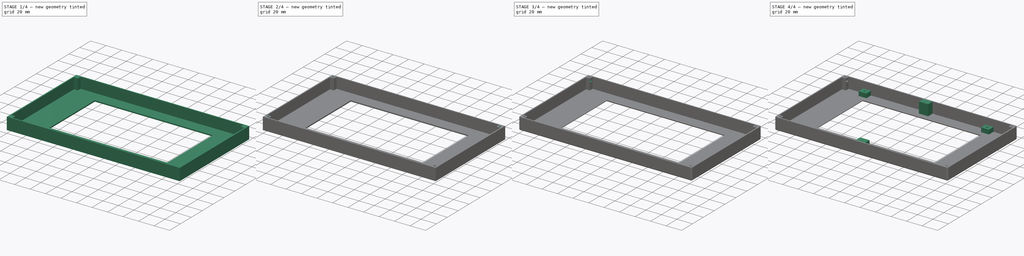
[diagram: build sequence overview — one tinted view per stage of 4, left to right]
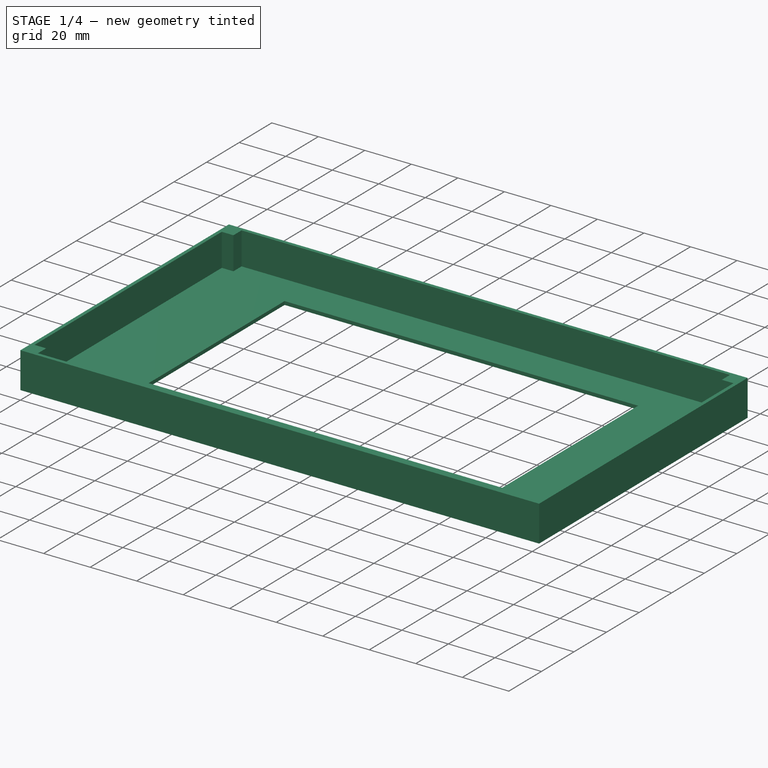
[diagram: stage 1 of 4 — iso view after this stage's code; geometry added in this stage tinted green]
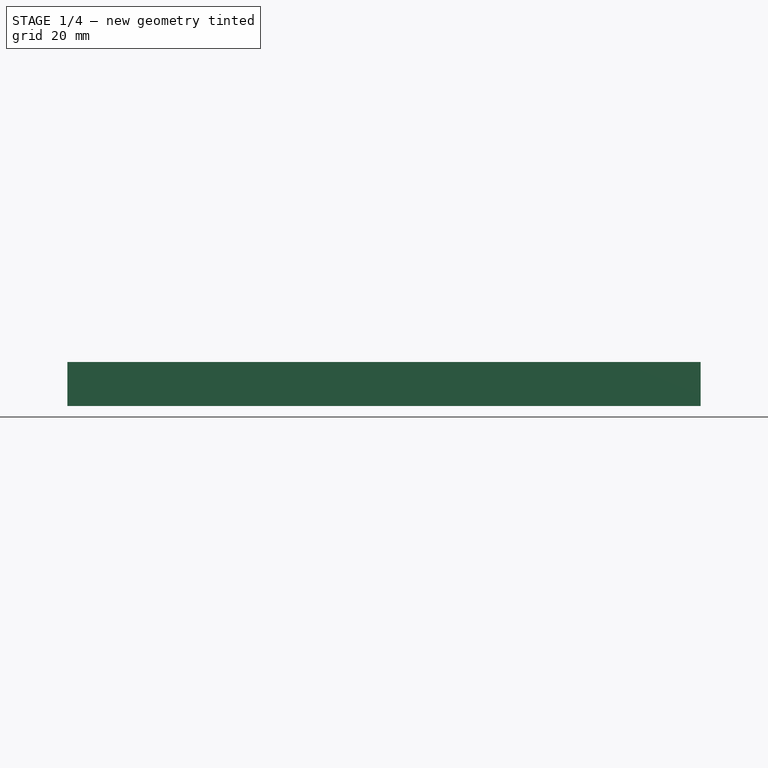
[diagram: stage 1 of 4 — front view after this stage's code; geometry added in this stage tinted green]
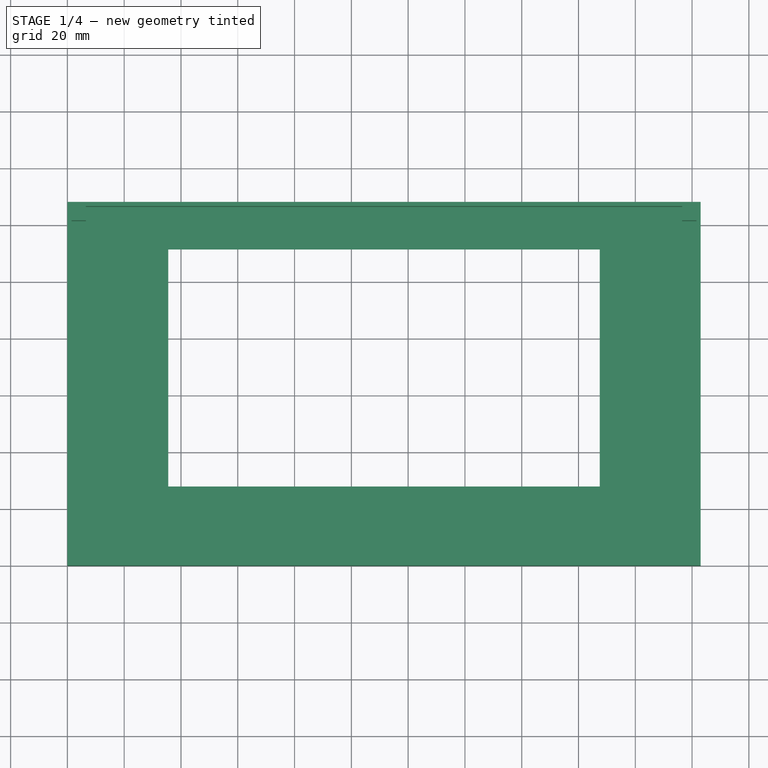
[diagram: stage 1 of 4 — top view after this stage's code; geometry added in this stage tinted green]
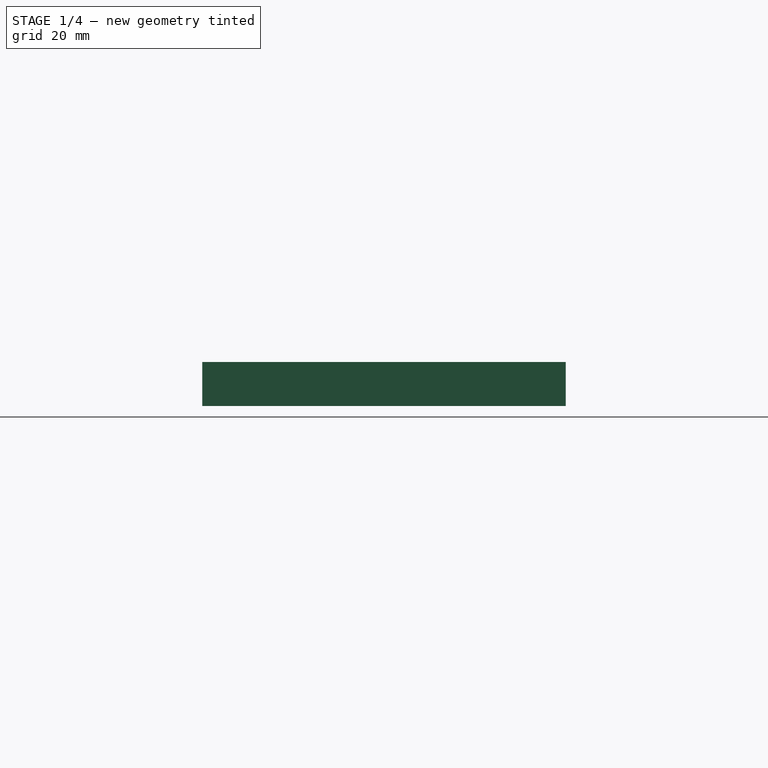
[diagram: stage 1 of 4 — right view after this stage's code; geometry added in this stage tinted green]
FCSTD DOCUMENT  (FreeCAD 0.17R10476 (Git))
Label: EPIC_top
License: All rights reserved
LicenseURL: http://en.wikipedia.org/wiki/All_rights_reserved
objects: Sketcher::SketchObject×10, PartDesign::LinearPattern×6, PartDesign::Pocket×5, PartDesign::Pad×4, PartDesign::MultiTransform×3, PartDesign::Fillet×1, PartDesign::Chamfer×1, PartDesign::Body×1
note: 40 computed .brp shape members not serialized (recipe doc carries the construction recipe); baked Part::Feature solids carry a one-line shape summary decoded from their .brp

FEATURE [Sketcher::SketchObject] Sketch
  MapMode = 5
  Support = -> [XY_Plane]
  sketch-geometry (4):
    g0: LineSegment StartX=0 StartY=0 StartZ=0 EndX=223 EndY=0 EndZ=0
    g1: LineSegment StartX=223 StartY=0 StartZ=0 EndX=223 EndY=128 EndZ=0
    g2: LineSegment StartX=223 StartY=128 StartZ=0 EndX=0 EndY=128 EndZ=0
    g3: LineSegment StartX=0 StartY=128 StartZ=0 EndX=0 EndY=0 EndZ=0
  constraints (11):
    c: Coincident(g0,g1)
    c: Coincident(g1,g2)
    c: Coincident(g2,g3)
    c: Coincident(g3,g0)
    c: Horizontal(g0)
    c: Horizontal(g2)
    c: Vertical(g1)
    c: Vertical(g3)
    c: Coincident(g0,g-1)
    c: DistanceY(g1,g1) = 128
    c: DistanceX(g0,g0) = 223
FEATURE [PartDesign::Pad] Pad
  Length = 15.5
  Length2 = 100
  Profile = -> Sketch
  Type = 0
FEATURE [Sketcher::SketchObject] Sketch001
  ExternalGeometry = -> [Pad]
  MapMode = 5
  Placement = pos=(0,0,15.5) rot=(0,0,1;0rad)
  Support = -> [Pad]
  sketch-geometry (4):
    g0: LineSegment StartX=1.5 StartY=1.5 StartZ=0 EndX=221.5 EndY=1.5 EndZ=0
    g1: LineSegment StartX=221.5 StartY=1.5 StartZ=0 EndX=221.5 EndY=126.5 EndZ=0
    g2: LineSegment StartX=221.5 StartY=126.5 StartZ=0 EndX=1.5 EndY=126.5 EndZ=0
    g3: LineSegment StartX=1.5 StartY=126.5 StartZ=0 EndX=1.5 EndY=1.5 EndZ=0
  constraints (12):
    c: Coincident(g0,g1)
    c: Coincident(g1,g2)
    c: Coincident(g2,g3)
    c: Coincident(g3,g0)
    c: Horizontal(g0)
    c: Horizontal(g2)
    c: Vertical(g1)
    c: Vertical(g3)
    c: DistanceX(g-1,g0) = 1.5
    c: DistanceY(g-1,g0) = 1.5
    c: DistanceX(g1,g-3) = 1.5
    c: DistanceY(g1,g-3) = 1.5
FEATURE [PartDesign::Pocket] Pocket
  BaseFeature = -> Pad
  Length = 14
  Profile = -> Sketch001
  Type = 0
FEATURE [Sketcher::SketchObject] Sketch002
  ExternalGeometry = -> [Pocket]
  MapMode = 5
  Placement = pos=(0,0,1.5) rot=(0,0,1;0rad)
  Support = -> [Pocket]
  sketch-geometry (6):
    g0: LineSegment StartX=35.5 StartY=28 StartZ=0 EndX=187.5 EndY=28 EndZ=0
    g1: LineSegment StartX=187.5 StartY=28 StartZ=0 EndX=187.5 EndY=111.5 EndZ=0
    g2: LineSegment StartX=187.5 StartY=111.5 StartZ=0 EndX=35.5 EndY=111.5 EndZ=0
    g3: LineSegment StartX=35.5 StartY=111.5 StartZ=0 EndX=35.5 EndY=28 EndZ=0
    g4: LineSegment [constr] StartX=35.5 StartY=28 StartZ=0 EndX=0 EndY=0 EndZ=0
    g5: LineSegment [constr] StartX=187.5 StartY=28 StartZ=0 EndX=223 EndY=0 EndZ=0
  constraints (16):
    c: Coincident(g0,g1)
    c: Coincident(g1,g2)
    c: Coincident(g2,g3)
    c: Coincident(g3,g0)
    c: Horizontal(g0)
    c: Horizontal(g2)
    c: Vertical(g1)
    c: Vertical(g3)
    c: DistanceY(g1,g-3) = 16.5
    c: DistanceY(g-4,g0) = 28
    c: DistanceX(g0,g0) = 152
    c: Coincident(g4,g0)
    c: Coincident(g4,g-1)
    c: Coincident(g5,g0)
    c: Coincident(g5,g-4)
    c: Equal(g5,g4)
FEATURE [PartDesign::Pocket] Pocket001
  BaseFeature = -> Pocket
  Length = 5
  Profile = -> Sketch002
  Type = 0
FEATURE [Sketcher::SketchObject] Sketch003
  MapMode = 5
  Placement = pos=(0,0,1.5) rot=(0,0,1;0rad)
  Support = -> [Pocket001]
FEATURE [Sketcher::SketchObject] Sketch004
  ExternalGeometry = -> [Pocket001]
  MapMode = 5
  Placement = pos=(0,0,1.5) rot=(0,0,1;0rad)
  Support = -> [Pocket001]
  sketch-geometry (16):
    g0: LineSegment StartX=1.5 StartY=126.5 StartZ=0 EndX=6.5 EndY=126.5 EndZ=0
    g1: LineSegment StartX=6.5 StartY=126.5 StartZ=0 EndX=6.5 EndY=121.5 EndZ=0
    g2: LineSegment StartX=6.5 StartY=121.5 StartZ=0 EndX=1.5 EndY=121.5 EndZ=0
    g3: LineSegment StartX=1.5 StartY=121.5 StartZ=0 EndX=1.5 EndY=126.5 EndZ=0
    g4: LineSegment StartX=1.5 StartY=1.5 StartZ=0 EndX=6.5 EndY=1.5 EndZ=0
    g5: LineSegment StartX=6.5 StartY=1.5 StartZ=0 EndX=6.5 EndY=6.5 EndZ=0
    g6: LineSegment StartX=6.5 StartY=6.5 StartZ=0 EndX=1.5 EndY=6.5 EndZ=0
    g7: LineSegment StartX=1.5 StartY=6.5 StartZ=0 EndX=1.5 EndY=1.5 EndZ=0
    g8: LineSegment StartX=221.5 StartY=1.5 StartZ=0 EndX=216.5 EndY=1.5 EndZ=0
    g9: LineSegment StartX=216.5 StartY=1.5 StartZ=0 EndX=216.5 EndY=6.5 EndZ=0
    g10: LineSegment StartX=216.5 StartY=6.5 StartZ=0 EndX=221.5 EndY=6.5 EndZ=0
    g11: LineSegment StartX=221.5 StartY=6.5 StartZ=0 EndX=221.5 EndY=1.5 EndZ=0
    g12: LineSegment StartX=221.5 StartY=126.5 StartZ=0 EndX=216.5 EndY=126.5 EndZ=0
    g13: LineSegment StartX=216.5 StartY=126.5 StartZ=0 EndX=216.5 EndY=121.5 EndZ=0
    g14: LineSegment StartX=216.5 StartY=121.5 StartZ=0 EndX=221.5 EndY=121.5 EndZ=0
    g15: LineSegment StartX=221.5 StartY=121.5 StartZ=0 EndX=221.5 EndY=126.5 EndZ=0
  constraints (44):
    c: Coincident(g0,g1)
    c: Coincident(g1,g2)
    c: Coincident(g2,g3)
    c: Coincident(g3,g0)
    c: Horizontal(g0)
    c: Horizontal(g2)
    c: Vertical(g1)
    c: Vertical(g3)
    c: Coincident(g0,g-3)
    c: Coincident(g4,g5)
    c: Coincident(g5,g6)
    c: Coincident(g6,g7)
    c: Coincident(g7,g4)
    c: Horizontal(g4)
    c: Horizontal(g6)
    c: Vertical(g5)
    c: Vertical(g7)
    c: Coincident(g4,g-4)
    c: Coincident(g8,g9)
    c: Coincident(g9,g10)
    c: Coincident(g10,g11)
    c: Coincident(g11,g8)
    c: Horizontal(g8)
    c: Horizontal(g10)
    c: Vertical(g9)
    c: Vertical(g11)
    c: Coincident(g8,g-5)
    c: Coincident(g12,g13)
    c: Coincident(g13,g14)
    c: Coincident(g14,g15)
    c: Coincident(g15,g12)
    c: Horizontal(g12)
    c: Horizontal(g14)
    c: Vertical(g13)
    c: Vertical(g15)
    c: Coincident(g12,g-6)
    c: DistanceX(g14,g14) = 5
    c: Equal(g14,g13)
    c: Equal(g14,g10)
    c: Equal(g10,g9)
    c: Equal(g9,g5)
    c: Equal(g5,g6)
    c: Equal(g6,g2)
    c: Equal(g2,g1)
FEATURE [PartDesign::Pad] Pad001
  BaseFeature = -> Pocket001
  Length = 14
  Length2 = 100
  Profile = -> Sketch004
  Type = 0
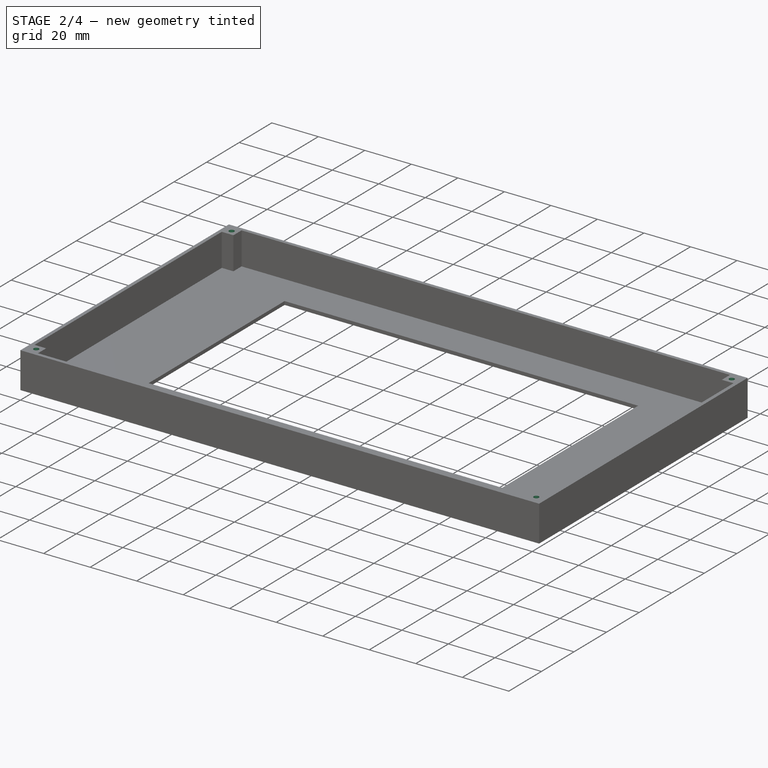
[diagram: stage 2 of 4 — iso view after this stage's code; geometry added in this stage tinted green]
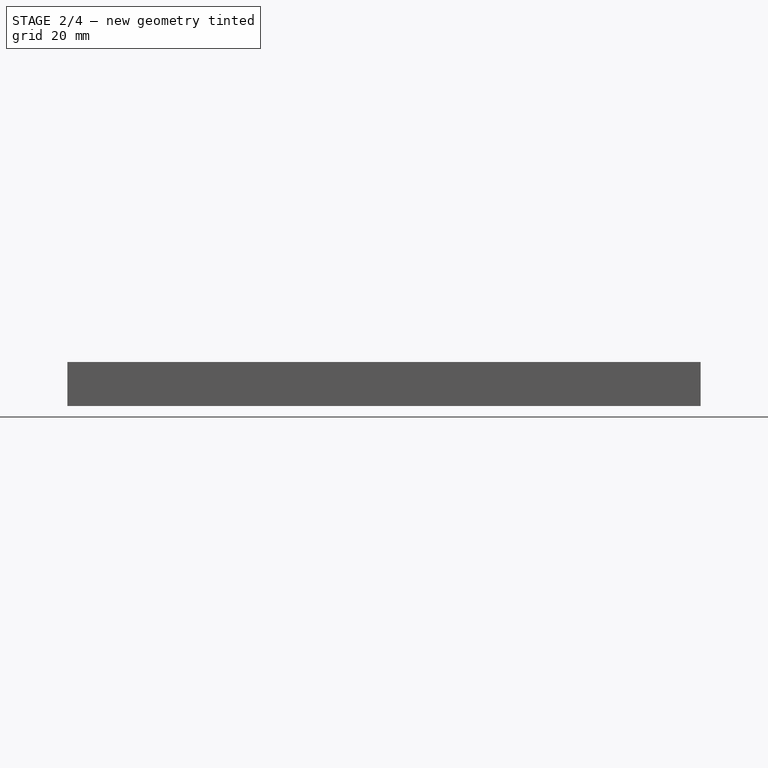
[diagram: stage 2 of 4 — front view after this stage's code; geometry added in this stage tinted green]
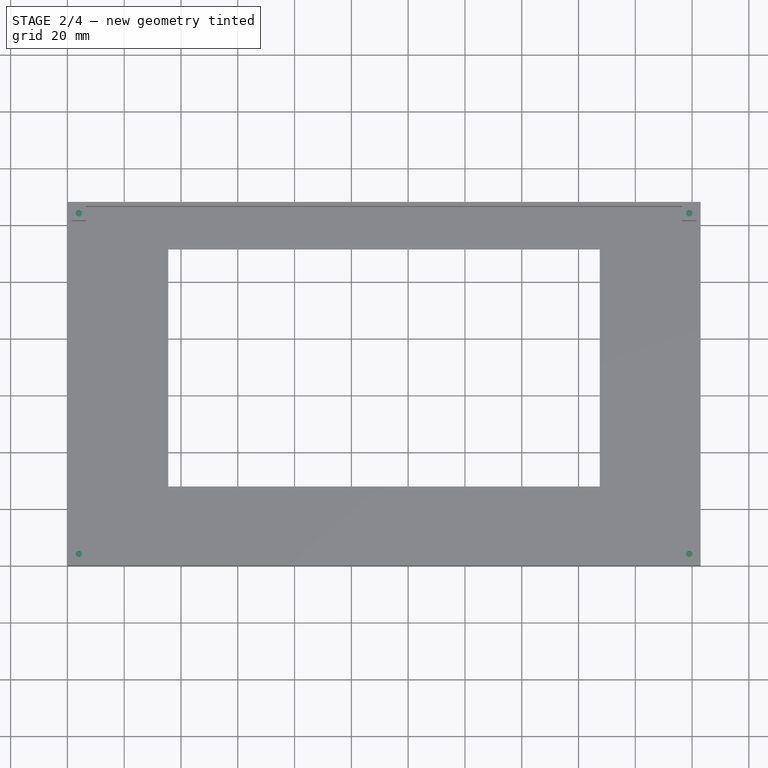
[diagram: stage 2 of 4 — top view after this stage's code; geometry added in this stage tinted green]
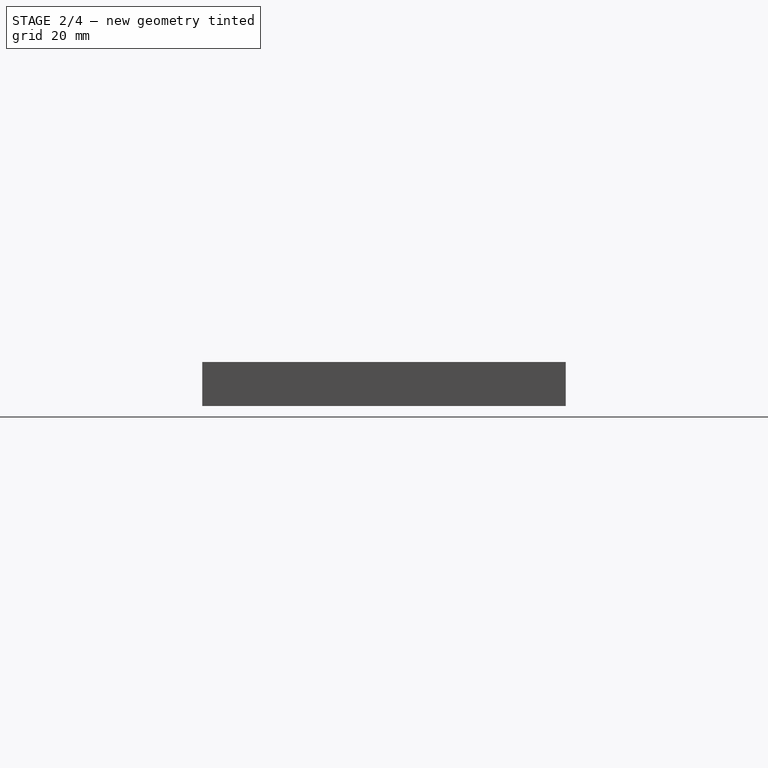
[diagram: stage 2 of 4 — right view after this stage's code; geometry added in this stage tinted green]
FEATURE [Sketcher::SketchObject] Sketch005
  ExternalGeometry = -> [Pad001]
  MapMode = 5
  Placement = pos=(0,0,15.5) rot=(0,0,1;0rad)
  Support = -> [Pad001]
  sketch-geometry (1):
    g0: Circle CenterX=4 CenterY=4 CenterZ=0 NormalX=0 NormalY=0 NormalZ=1 Radius=1.1
  constraints (3):
    c: Radius(g0) = 1.1
    c: DistanceX(g0,g-4) = 2.5
    c: DistanceY(g0,g-4) = 2.5
FEATURE [PartDesign::Pocket] Pocket002
  BaseFeature = -> Pad001
  Length = 3
  Profile = -> Sketch005
  Type = 0
FEATURE [PartDesign::LinearPattern] LinearPattern
  Direction = -> Sketch005 [H_Axis]
  Length = 215
  Occurrences = 2
FEATURE [PartDesign::LinearPattern] LinearPattern001
  Direction = -> Sketch005 [V_Axis]
  Length = 120
  Occurrences = 2
FEATURE [PartDesign::MultiTransform] MultiTransform
  BaseFeature = -> Pocket002
  Originals = -> [Pocket002]
  Transformations = -> [LinearPattern,LinearPattern001]
FEATURE [Sketcher::SketchObject] Sketch006
  ExternalGeometry = -> [MultiTransform]
  MapMode = 5
  Placement = pos=(6.5,0,0) rot=(0.57735,0.57735,0.57735;2.0944rad)
  Support = -> [MultiTransform]
  sketch-geometry (4):
    g0: LineSegment StartX=1.5 StartY=12.5 StartZ=0 EndX=6 EndY=12.5 EndZ=0
    g1: LineSegment StartX=6 StartY=12.5 StartZ=0 EndX=6 EndY=10.5 EndZ=0
    g2: LineSegment StartX=6 StartY=10.5 StartZ=0 EndX=1.5 EndY=10.5 EndZ=0
    g3: LineSegment StartX=1.5 StartY=10.5 StartZ=0 EndX=1.5 EndY=12.5 EndZ=0
  constraints (12):
    c: Coincident(g0,g1)
    c: Coincident(g1,g2)
    c: Coincident(g2,g3)
    c: Coincident(g3,g0)
    c: Horizontal(g0)
    c: Horizontal(g2)
    c: Vertical(g1)
    c: Vertical(g3)
    c: PointOnObject(g0,g-3)
    c: Distance(g0,g-3) = 3
    c: Distance(g0,g2) = 2
    c: DistanceX(g0,g-5) = 0.5
FEATURE [PartDesign::Pocket] Pocket003
  BaseFeature = -> MultiTransform
  Length = 5
  Profile = -> Sketch006
  Type = 0
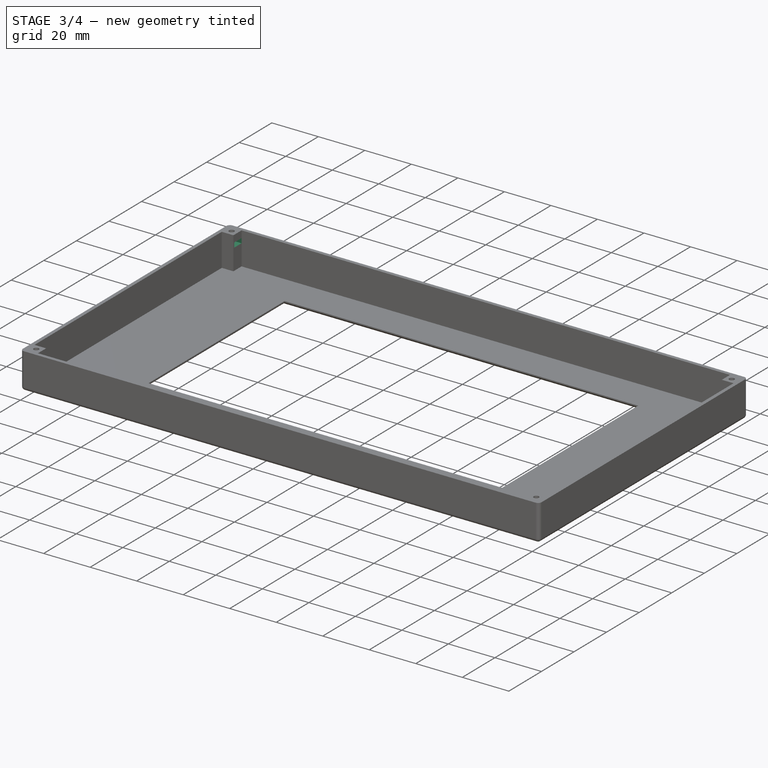
[diagram: stage 3 of 4 — iso view after this stage's code; geometry added in this stage tinted green]
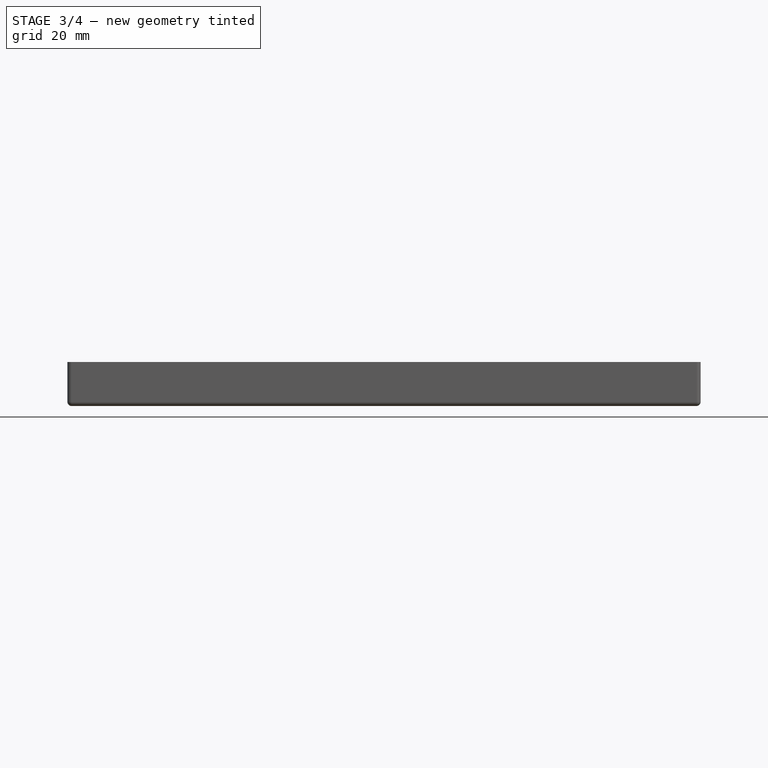
[diagram: stage 3 of 4 — front view after this stage's code; geometry added in this stage tinted green]
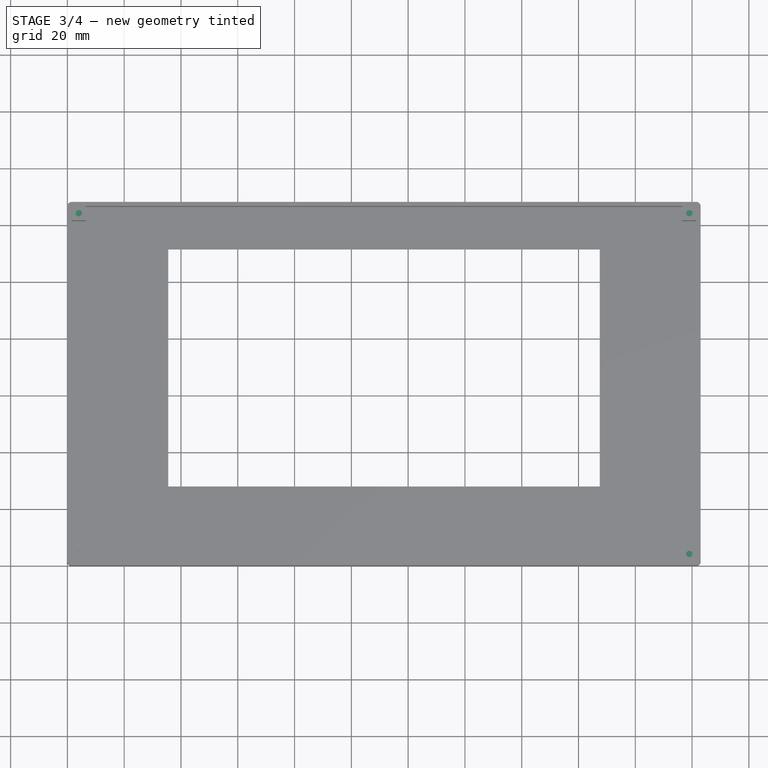
[diagram: stage 3 of 4 — top view after this stage's code; geometry added in this stage tinted green]
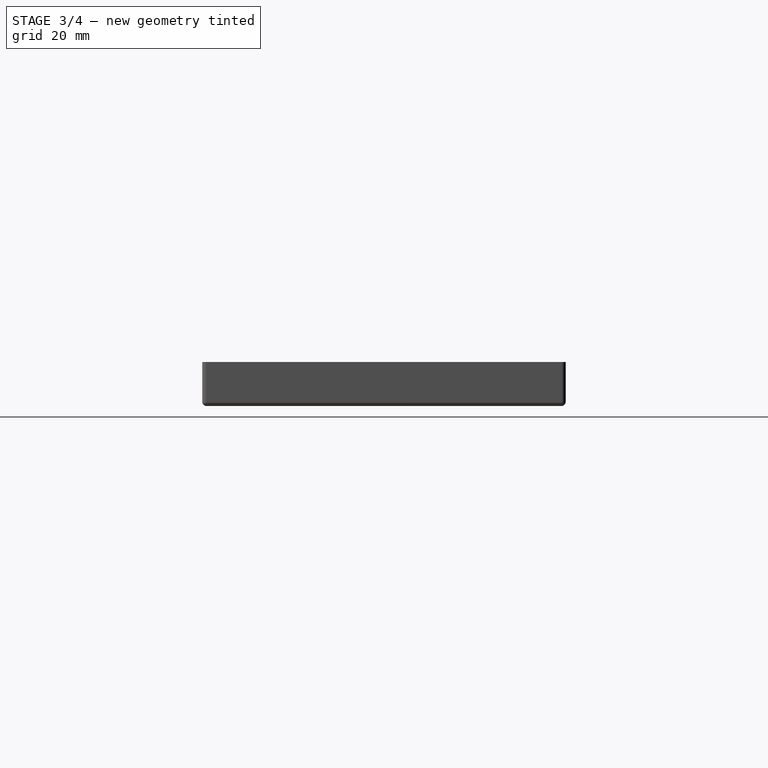
[diagram: stage 3 of 4 — right view after this stage's code; geometry added in this stage tinted green]
FEATURE [PartDesign::LinearPattern] LinearPattern002
  Direction = -> Sketch006 [H_Axis]
  Length = 120.5
  Occurrences = 2
FEATURE [PartDesign::LinearPattern] LinearPattern003
  Direction = -> Sketch006 [N_Axis]
  Length = 215
  Occurrences = 2
FEATURE [PartDesign::MultiTransform] MultiTransform001
  BaseFeature = -> Pocket003
  Originals = -> [Pocket003]
  Transformations = -> [LinearPattern002,LinearPattern003]
FEATURE [PartDesign::Fillet] Fillet
  Base = -> MultiTransform001 [Edge1,Edge6,Edge3,Edge5,Edge11,Edge8,Edge9,Edge2]
  BaseFeature = -> MultiTransform001
  Radius = 1.5
FEATURE [PartDesign::Chamfer] Chamfer
  Base = -> Fillet [Edge81,Edge82,Edge79,Edge80]
  BaseFeature = -> Fillet
  Size = 1
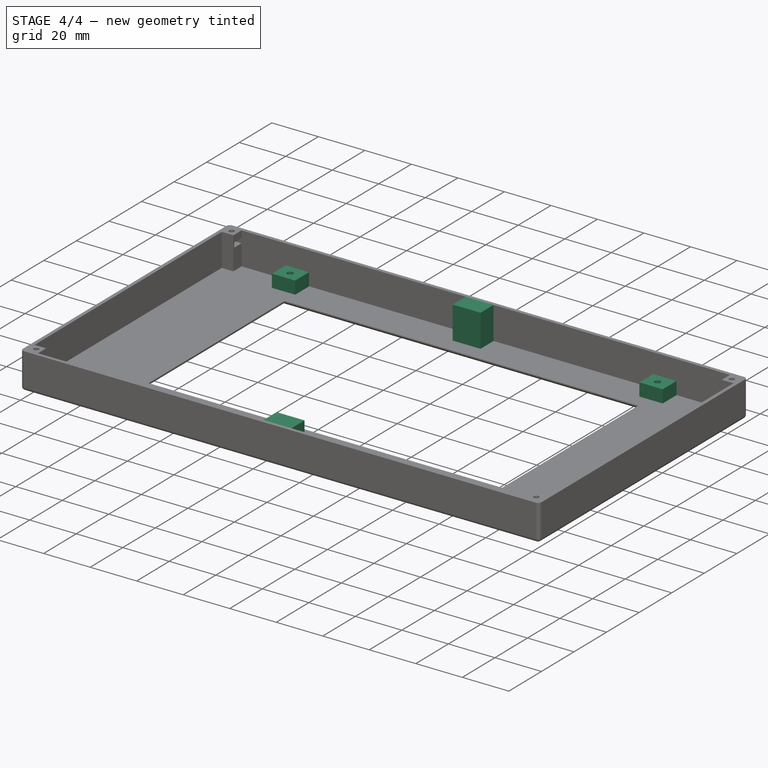
[diagram: stage 4 of 4 — iso view after this stage's code; geometry added in this stage tinted green]
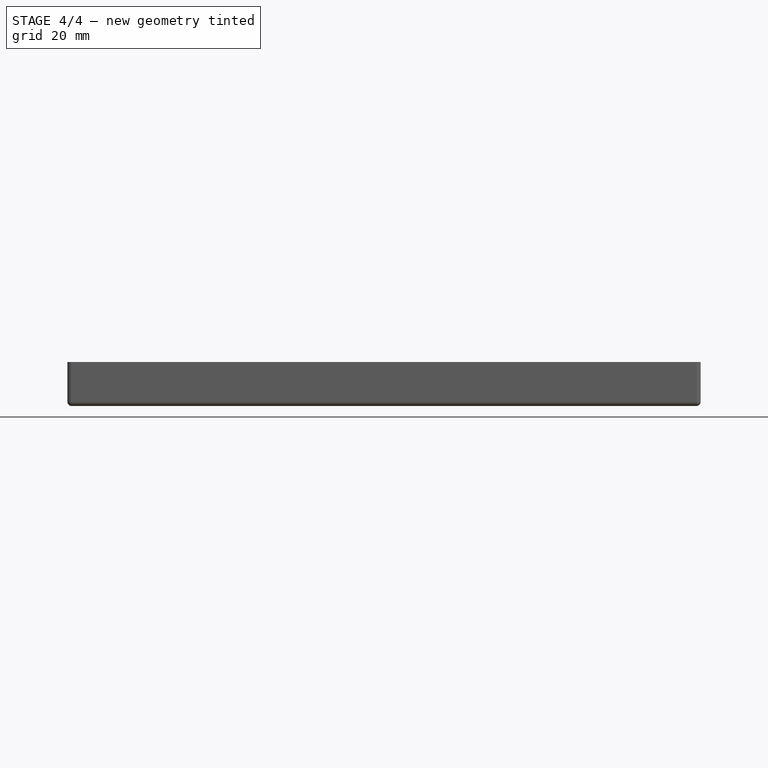
[diagram: stage 4 of 4 — front view after this stage's code; geometry added in this stage tinted green]
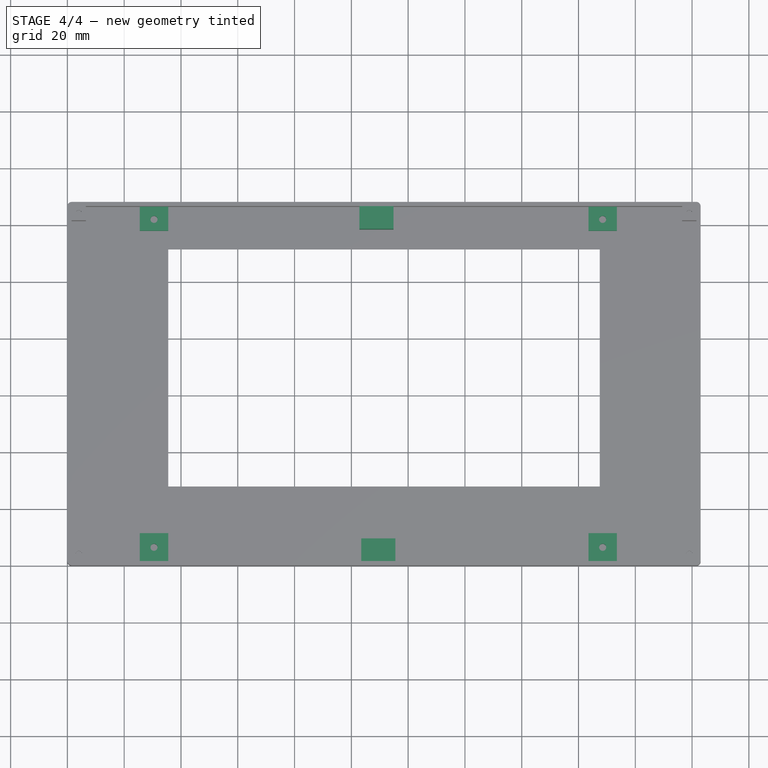
[diagram: stage 4 of 4 — top view after this stage's code; geometry added in this stage tinted green]
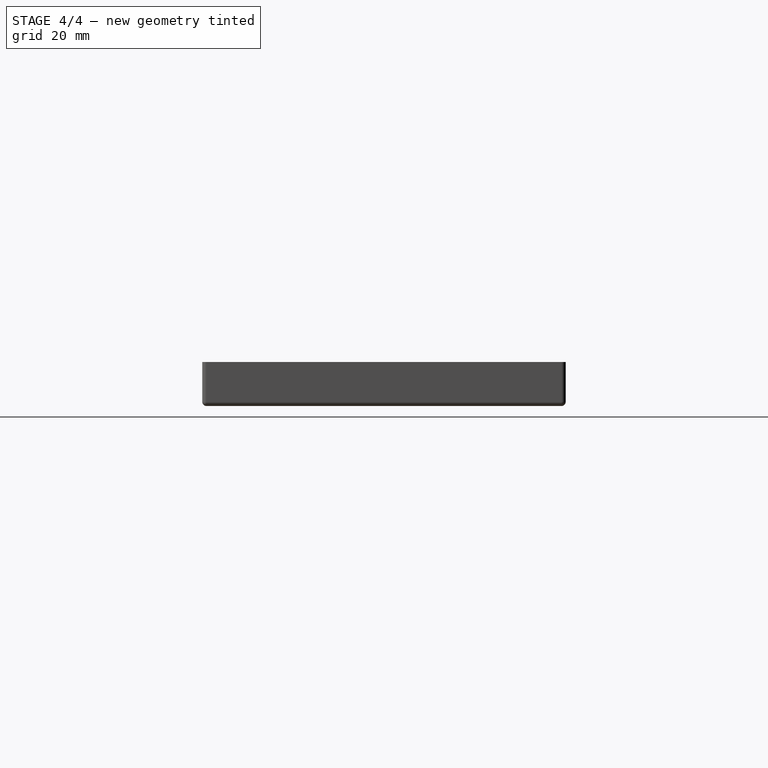
[diagram: stage 4 of 4 — right view after this stage's code; geometry added in this stage tinted green]
FEATURE [Sketcher::SketchObject] Sketch007
  ExternalGeometry = -> [Chamfer]
  MapMode = 5
  Placement = pos=(0,0,1.5) rot=(0,0,1;0rad)
  Support = -> [Chamfer]
  sketch-geometry (20):
    g0: LineSegment StartX=25.5 StartY=1.5 StartZ=0 EndX=35.5 EndY=1.5 EndZ=0
    g1: LineSegment StartX=35.5 StartY=1.5 StartZ=0 EndX=35.5 EndY=11.5 EndZ=0
    g2: LineSegment StartX=35.5 StartY=11.5 StartZ=0 EndX=25.5 EndY=11.5 EndZ=0
    g3: LineSegment StartX=25.5 StartY=11.5 StartZ=0 EndX=25.5 EndY=1.5 EndZ=0
    g4: LineSegment StartX=183.5 StartY=1.5 StartZ=0 EndX=193.5 EndY=1.5 EndZ=0
    g5: LineSegment StartX=193.5 StartY=1.5 StartZ=0 EndX=193.5 EndY=11.5 EndZ=0
    g6: LineSegment StartX=193.5 StartY=11.5 StartZ=0 EndX=183.5 EndY=11.5 EndZ=0
    g7: LineSegment StartX=183.5 StartY=11.5 StartZ=0 EndX=183.5 EndY=1.5 EndZ=0
    g8: LineSegment [constr] StartX=183.5 StartY=11.5 StartZ=0 EndX=188.5 EndY=11.5 EndZ=0
    g9: LineSegment [constr] StartX=188.5 StartY=11.5 StartZ=0 EndX=193.5 EndY=11.5 EndZ=0
    g10: LineSegment [constr] StartX=25.5 StartY=11.5 StartZ=0 EndX=30.5 EndY=11.5 EndZ=0
    g11: LineSegment [constr] StartX=30.5 StartY=11.5 StartZ=0 EndX=35.5 EndY=11.5 EndZ=0
    g12: LineSegment StartX=25.5 StartY=126.5 StartZ=0 EndX=35.5 EndY=126.5 EndZ=0
    g13: LineSegment StartX=35.5 StartY=126.5 StartZ=0 EndX=35.5 EndY=118 EndZ=0
    g14: LineSegment StartX=35.5 StartY=118 StartZ=0 EndX=25.5 EndY=118 EndZ=0
    g15: LineSegment StartX=25.5 StartY=118 StartZ=0 EndX=25.5 EndY=126.5 EndZ=0
    g16: LineSegment StartX=183.5 StartY=126.5 StartZ=0 EndX=193.5 EndY=126.5 EndZ=0
    g17: LineSegment StartX=193.5 StartY=126.5 StartZ=0 EndX=193.5 EndY=118 EndZ=0
    g18: LineSegment StartX=193.5 StartY=118 StartZ=0 EndX=183.5 EndY=118 EndZ=0
    g19: LineSegment StartX=183.5 StartY=118 StartZ=0 EndX=183.5 EndY=126.5 EndZ=0
  constraints (58):
    c: Coincident(g0,g1)
    c: Coincident(g1,g2)
    c: Coincident(g2,g3)
    c: Coincident(g3,g0)
    c: Horizontal(g0)
    c: Horizontal(g2)
    c: Vertical(g1)
    c: Vertical(g3)
    c: PointOnObject(g0,g-3)
    c: Equal(g2,g1)
    c: DistanceX(g2,g2) = 10
    c: Coincident(g4,g5)
    c: Coincident(g5,g6)
    c: Coincident(g6,g7)
    c: Coincident(g7,g4)
    c: Horizontal(g4)
    c: Horizontal(g6)
    c: Vertical(g5)
    c: Vertical(g7)
    c: PointOnObject(g4,g-3)
    c: Equal(g5,g6)
    c: Equal(g6,g1)
    c: Coincident(g8,g6)
    c: Horizontal(g8)
    c: Coincident(g9,g8)
    c: Coincident(g9,g5)
    c: Equal(g8,g9)
    c: DistanceX(g8,g-4) = -1
    c: Coincident(g10,g2)
    c: PointOnObject(g10,g2)
    c: Coincident(g11,g10)
    c: Coincident(g11,g1)
    c: Equal(g10,g11)
    c: DistanceX(g10,g-5) = 5
    c: Coincident(g12,g13)
    c: Coincident(g13,g14)
    c: Coincident(g14,g15)
    c: Coincident(g15,g12)
    c: Horizontal(g12)
    c: Horizontal(g14)
    c: Vertical(g13)
    c: Vertical(g15)
    c: PointOnObject(g12,g-6)
    c: Coincident(g16,g17)
    c: Coincident(g17,g18)
    c: Coincident(g18,g19)
    c: Coincident(g19,g16)
    c: Horizontal(g16)
    c: Horizontal(g18)
    c: Vertical(g17)
    c: Vertical(g19)
    c: PointOnObject(g16,g-6)
    c: Equal(g14,g18)
    c: DistanceX(g18,g18) = 10
    c: Equal(g13,g19)
    c: DistanceY(g19,g19) = 8.5
    c: DistanceX(g2,g14) = 0
    c: DistanceX(g17,g5) = 0
FEATURE [PartDesign::Pad] Pad002
  BaseFeature = -> Chamfer
  Length = 5.5
  Length2 = 100
  Profile = -> Sketch007
  Type = 0
FEATURE [Sketcher::SketchObject] Sketch008
  ExternalGeometry = -> [Pad002]
  MapMode = 5
  Placement = pos=(0,0,7) rot=(0,0,1;0rad)
  Support = -> [Pad002]
  sketch-geometry (1):
    g0: Circle CenterX=30.5 CenterY=6.5 CenterZ=0 NormalX=0 NormalY=0 NormalZ=1 Radius=1.25
  constraints (3):
    c: Radius(g0) = 1.25
    c: DistanceX(g-3,g0) = 5
    c: DistanceY(g0,g-3) = 5
FEATURE [PartDesign::Pocket] Pocket004
  BaseFeature = -> Pad002
  Length = 6
  Profile = -> Sketch008
  Type = 0
FEATURE [PartDesign::LinearPattern] LinearPattern004
  Direction = -> Sketch008 [H_Axis]
  Length = 158
  Occurrences = 2
FEATURE [PartDesign::LinearPattern] LinearPattern005
  Direction = -> Sketch008 [V_Axis]
  Length = 115.5
  Occurrences = 2
FEATURE [PartDesign::MultiTransform] MultiTransform002
  BaseFeature = -> Pocket004
  Originals = -> [Pocket004]
  Transformations = -> [LinearPattern004,LinearPattern005]
FEATURE [Sketcher::SketchObject] Sketch009
  ExternalGeometry = -> [MultiTransform002]
  MapMode = 5
  Placement = pos=(0,0,1.5) rot=(0,0,1;0rad)
  Support = -> [MultiTransform002]
  sketch-geometry (12):
    g0: LineSegment StartX=102.841 StartY=126.5 StartZ=0 EndX=114.841 EndY=126.5 EndZ=0
    g1: LineSegment StartX=114.841 StartY=126.5 StartZ=0 EndX=114.841 EndY=118.5 EndZ=0
    g2: LineSegment StartX=114.841 StartY=118.5 StartZ=0 EndX=102.841 EndY=118.5 EndZ=0
    g3: LineSegment StartX=102.841 StartY=118.5 StartZ=0 EndX=102.841 EndY=126.5 EndZ=0
    g4: LineSegment StartX=103.5 StartY=1.5 StartZ=0 EndX=115.5 EndY=1.5 EndZ=0
    g5: LineSegment StartX=115.5 StartY=1.5 StartZ=0 EndX=115.5 EndY=9.5 EndZ=0
    g6: LineSegment StartX=115.5 StartY=9.5 StartZ=0 EndX=103.5 EndY=9.5 EndZ=0
    g7: LineSegment StartX=103.5 StartY=9.5 StartZ=0 EndX=103.5 EndY=1.5 EndZ=0
    g8: LineSegment [constr] StartX=35.5 StartY=118 StartZ=0 EndX=102.841 EndY=118.5 EndZ=0
    g9: LineSegment [constr] StartX=114.841 StartY=118.5 StartZ=0 EndX=182.183 EndY=118 EndZ=0
    g10: LineSegment [constr] StartX=35.5 StartY=11.5 StartZ=0 EndX=103.5 EndY=9.5 EndZ=0
    g11: LineSegment [constr] StartX=115.5 StartY=9.5 StartZ=0 EndX=183.5 EndY=11.5 EndZ=0
  constraints (31):
    c: Coincident(g0,g1)
    c: Coincident(g1,g2)
    c: Coincident(g2,g3)
    c: Coincident(g3,g0)
    c: Horizontal(g0)
    c: Horizontal(g2)
    c: Vertical(g1)
    c: Vertical(g3)
    c: PointOnObject(g0,g-4)
    c: Coincident(g4,g5)
    c: Coincident(g6,g7)
    c: Coincident(g7,g4)
    c: Horizontal(g4)
    c: Horizontal(g6)
    c: Vertical(g5)
    c: Vertical(g7)
    c: PointOnObject(g4,g-3)
    c: Coincident(g8,g-8)
    c: Coincident(g8,g2)
    c: Coincident(g9,g1)
    c: Equal(g9,g8)
    c: Coincident(g10,g-5)
    c: Coincident(g6,g10)
    c: Coincident(g11,g-6)
    c: Coincident(g11,g5)
    c: Coincident(g11,g6)
    c: Equal(g11,g10)
    c: Equal(g6,g2)
    c: DistanceY(g5,g5) = 8
    c: Equal(g5,g1)
    c: DistanceX(g6,g6) = 12
FEATURE [PartDesign::Pad] Pad003
  BaseFeature = -> MultiTransform002
  Length = 14
  Length2 = 100
  Profile = -> Sketch009
  Type = 0
FEATURE [PartDesign::Body] Body
  Group = -> [Sketch,Pad,Sketch001,Pocket,Sketch002,Pocket001,Sketch003,Sketch004,Pad001,Sketch005,Pocket002,MultiTransform,Sketch006,Pocket003,MultiTransform001,Fillet,Chamfer,Sketch007,Pad002,Sketch008,Pocket004,MultiTransform002,Sketch009,Pad003]
  Origin = -> BodyOrigin
  Tip = -> Pad003
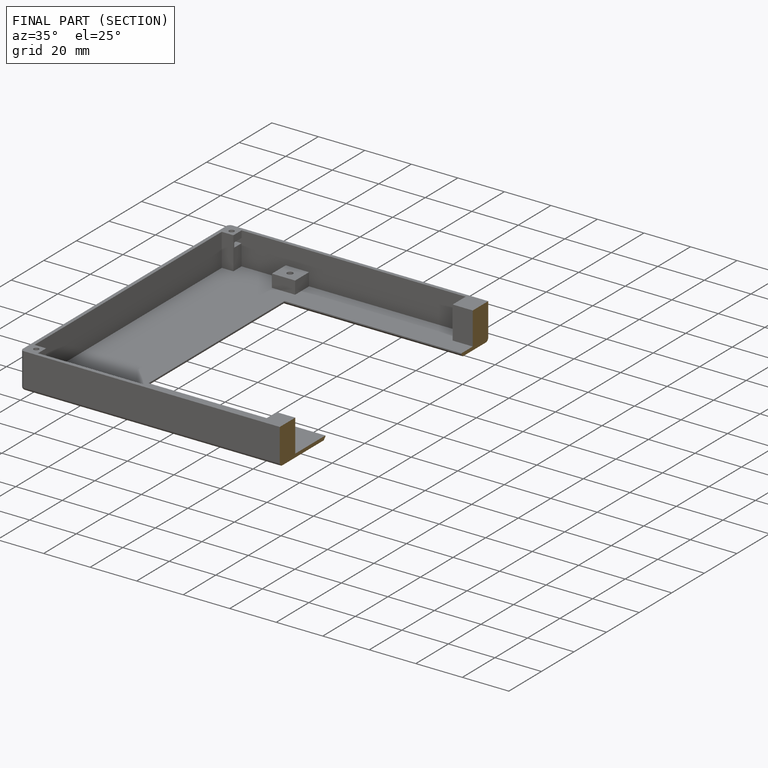
[diagram: finished part — half-section view (interior)]
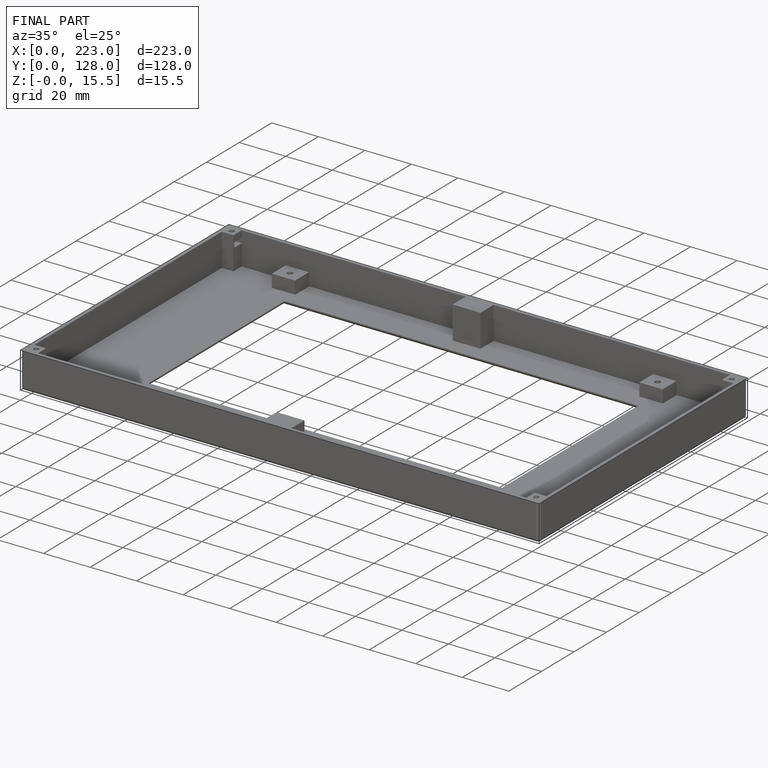
[diagram: finished part — iso view with bounding-box wireframe]
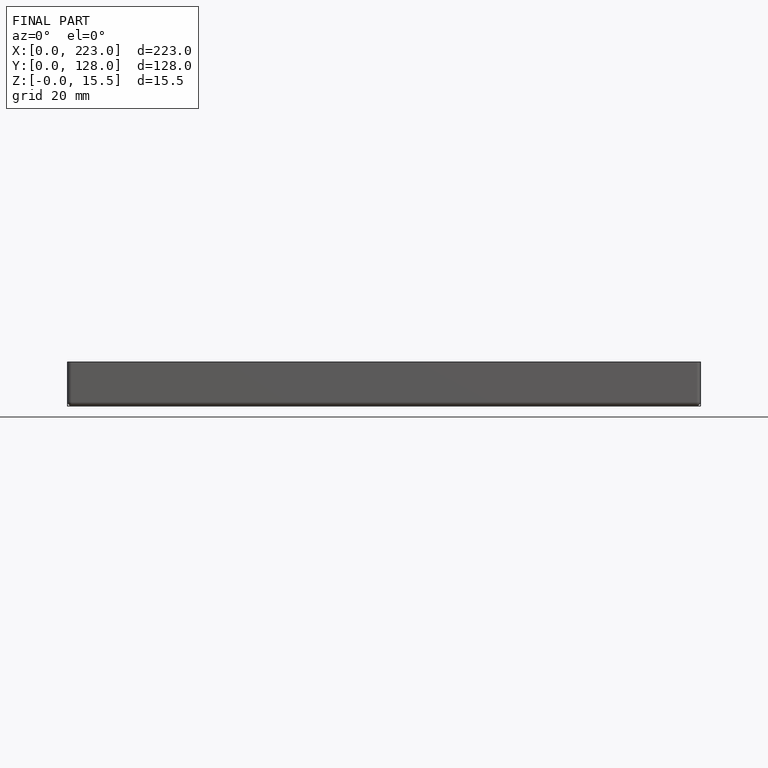
[diagram: finished part — front view with bounding-box wireframe]
